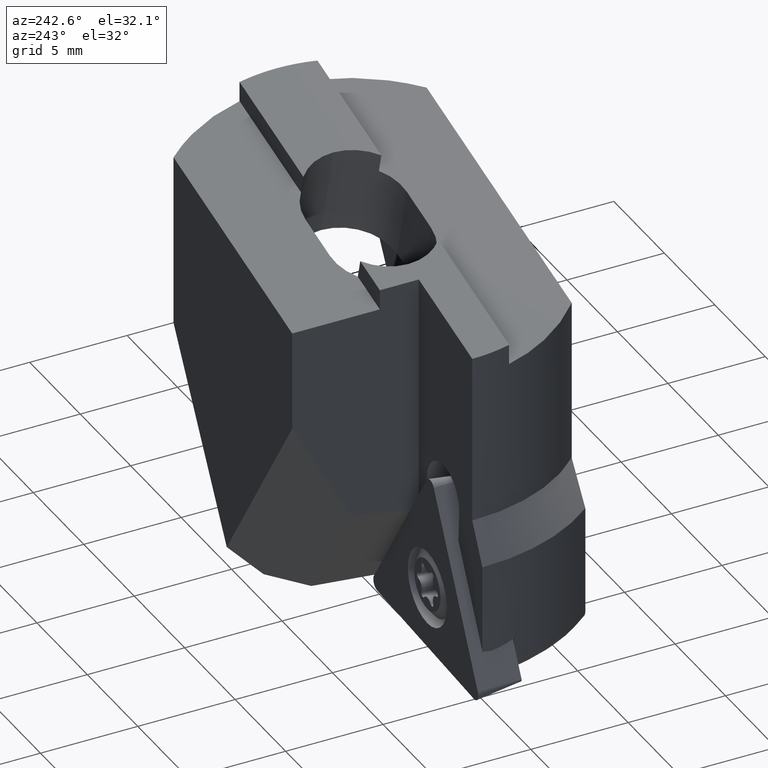
[diagram: clean part render]
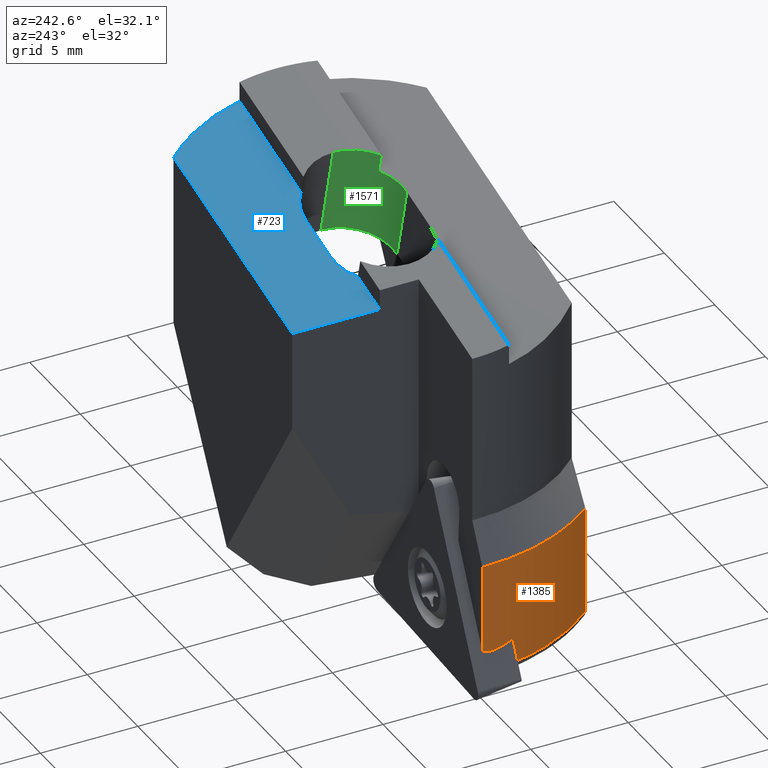
[diagram: same view with three faces highlighted in distinct colors, each labeled with its STEP entity id]
A machine part, auxiliary view with three faces highlighted in distinct colors.
Their STEP definitions:

[orange] entity #1385 — the highlighted cylindrical surface (partial cylindrical patch) has radius 10.2 mm, axis along (0, -0, 1).
#585=VERTEX_POINT('NONE',#1689);
#619=EDGE_CURVE('NONE',#1083,#1401,#1725,.T.);
#699=EDGE_CURVE('NONE',#945,#1293,#1815,.T.);
#807=EDGE_CURVE('NONE',#1383,#1293,#1936,.T.);
#873=EDGE_CURVE('NONE',#1569,#1383,#2008,.T.);
#945=VERTEX_POINT('NONE',#2094);
#1021=EDGE_CURVE('NONE',#1401,#585,#2176,.F.);
#1083=VERTEX_POINT('NONE',#2245);
#1193=EDGE_CURVE('NONE',#1569,#585,#2363,.F.);
#1245=EDGE_CURVE('NONE',#1083,#945,#2424,.T.);
#1293=VERTEX_POINT('NONE',#2476);
#1383=VERTEX_POINT('NONE',#2577);
#1385=ADVANCED_FACE('NONE',(#2579),#2580,.T.);
#1401=VERTEX_POINT('NONE',#2597);
#1569=VERTEX_POINT('NONE',#2775);
#1689=CARTESIAN_POINT('',(-7.86066154976793,-6.5,-21.0628344528579));
#1725=LINE('',#2958,#2959);
#1815=ELLIPSE('',#3083,22.6127887685283,10.2);
#1936=LINE('',#3239,#3240);
#2008=CIRCLE('',#3337,10.2);
#2094=CARTESIAN_POINT('',(-10.1892149538817,-0.468933495916991,-20.1317243506722));
#2176=B_SPLINE_CURVE_WITH_KNOTS('',3,(#3555,#3556,#3557,#3558,#3559,#3560,#3561,#3562,#3563,#3564),.UNSPECIFIED.,.F.,.F.,(4,3,3,4),(0.0,0.567814310972953,0.833359804039819,1.0),.UNSPECIFIED.);
#2245=CARTESIAN_POINT('',(-10.0573356312693,-1.7,-19.8728966066542));
#2363=LINE('',#4203,#4204);
#2424=ELLIPSE('',#4287,22.4674304987693,10.2);
#2476=CARTESIAN_POINT('',(-10.2,-2.22044604925031E-015,-20.0352054220153));
#2577=CARTESIAN_POINT('',(-10.2,-1.24909848089882E-015,-15.5));
#2579=FACE_OUTER_BOUND('',#4496,.T.);
#2580=CYLINDRICAL_SURFACE('',#4497,10.2);
#2597=CARTESIAN_POINT('',(-10.0573356312693,-1.7,-21.1723139882574));
#2775=CARTESIAN_POINT('',(-7.86066154976794,-6.5,-15.5));
#2958=CARTESIAN_POINT('',(-10.0573356312694,-1.7,-25.0));
#2959=VECTOR('',#4950,1.0);
#3083=AXIS2_PLACEMENT_3D('',#5058,#5059,#5060);
#3239=CARTESIAN_POINT('',(-10.2,0.0,-25.0));
#3240=VECTOR('',#5227,1.0);
#3337=AXIS2_PLACEMENT_3D('',#5318,#5319,#5320);
#3555=CARTESIAN_POINT('',(-7.86066154976793,-6.5,-21.0628344528579));
#3556=CARTESIAN_POINT('',(-8.50430514676543,-5.72162085005038,-21.0949030854319));
#3557=CARTESIAN_POINT('',(-9.03215775332117,-4.84566351870311,-21.1212495668353));
#3558=CARTESIAN_POINT('',(-9.41964797551746,-3.91282915769776,-21.1405355891396));
#3559=CARTESIAN_POINT('',(-9.6008626439808,-3.47657745435758,-21.1495549396616));
#3560=CARTESIAN_POINT('',(-9.75182121446842,-3.0274251618058,-21.1570778329274));
#3561=CARTESIAN_POINT('',(-9.87089457942407,-2.57010509549638,-21.1630084849264));
#3562=CARTESIAN_POINT('',(-9.94561777898089,-2.28311884471811,-21.1667302013068));
#3563=CARTESIAN_POINT('',(-10.0079093118368,-1.99241004914773,-21.1698504232316));
#3564=CARTESIAN_POINT('',(-10.0573356312693,-1.70000000000001,-21.1723139882574));
#4203=CARTESIAN_POINT('',(-7.86066154976793,-6.5,-25.0));
#4204=VECTOR('',#5788,1.0);
#4287=AXIS2_PLACEMENT_3D('',#5881,#5882,#5883);
#4496=EDGE_LOOP('',(#6052,#6053,#6054,#6055,#6056,#6057,#6058));
#4497=AXIS2_PLACEMENT_3D('',#6059,#6060,#6061);
#4950=DIRECTION('',(-1.22464679914735E-016,0.0,-1.0));
#5058=CARTESIAN_POINT('',(-2.03025202247144E-018,0.0,-0.0165782658631457));
#5059=DIRECTION('',(0.885279005657779,0.113203213767907,-0.45107218328577));
#5060=DIRECTION('',(0.447428952205352,0.0572140477733558,0.892487470761248));
#5227=DIRECTION('',(-1.22464679914735E-016,0.0,-1.0));
#5318=CARTESIAN_POINT('',(-1.8982025386784E-015,0.0,-15.5));
#5319=DIRECTION('',(-1.22464679914735E-016,0.0,-1.0));
#5320=DIRECTION('',(1.0,0.0,-1.22464679914735E-016));
#5788=DIRECTION('',(1.22464679914735E-016,-0.0,1.0));
#5881=CARTESIAN_POINT('',(-1.64426026011188E-017,0.0,-0.134264039334173));
#5882=DIRECTION('',(0.891006524188364,0.0,-0.453990499739555));
#5883=DIRECTION('',(0.453990499739555,0.0,0.891006524188364));
#6052=ORIENTED_EDGE('',*,*,#619,.T.);
#6053=ORIENTED_EDGE('',*,*,#1021,.T.);
#6054=ORIENTED_EDGE('',*,*,#1193,.F.);
#6055=ORIENTED_EDGE('',*,*,#873,.T.);
#6056=ORIENTED_EDGE('',*,*,#807,.T.);
#6057=ORIENTED_EDGE('',*,*,#699,.F.);
#6058=ORIENTED_EDGE('',*,*,#1245,.F.);
#6059=CARTESIAN_POINT('',(-3.06161699786838E-015,0.0,-25.0));
#6060=DIRECTION('',(1.22464679914735E-016,-0.0,1.0));
#6061=DIRECTION('',(1.0,0.0,-1.22464679914735E-016));

[blue] entity #723 — the highlighted planar face has unit normal (0.2419, 0, -0.9703).
#711=EDGE_CURVE('NONE',#1221,#1009,#1827,.T.);
#723=ADVANCED_FACE('NONE',(#1840),#1841,.F.);
#773=EDGE_CURVE('NONE',#1291,#1045,#1896,.T.);
#851=VERTEX_POINT('NONE',#1984);
#877=EDGE_CURVE('NONE',#1009,#881,#2012,.T.);
#881=VERTEX_POINT('NONE',#2017);
#915=EDGE_CURVE('NONE',#985,#1221,#2055,.T.);
#985=VERTEX_POINT('NONE',#2136);
#1009=VERTEX_POINT('NONE',#2162);
#1045=VERTEX_POINT('NONE',#2203);
#1079=VERTEX_POINT('NONE',#2239);
#1169=EDGE_CURVE('NONE',#1045,#851,#2338,.T.);
#1221=VERTEX_POINT('NONE',#2396);
#1231=EDGE_CURVE('NONE',#985,#851,#2407,.T.);
#1291=VERTEX_POINT('NONE',#2474);
#1621=EDGE_CURVE('NONE',#881,#1079,#2831,.T.);
#1663=EDGE_CURVE('NONE',#1079,#1291,#2875,.F.);
#1827=LINE('',#3101,#3102);
#1840=FACE_OUTER_BOUND('',#3118,.T.);
#1841=PLANE('',#3119);
#1896=LINE('',#3189,#3190);
#1984=CARTESIAN_POINT('',(7.86066154976793,6.5,-1.61387621312051));
#2012=CIRCLE('',#3344,2.6);
#2017=CARTESIAN_POINT('',(-0.105192649020442,2.6,-3.59998673144431));
#2055=LINE('',#3401,#3402);
#2136=CARTESIAN_POINT('',(-3.9,6.5,-4.54613846943863));
#2162=CARTESIAN_POINT('',(-1.71716897581477,2.0,-4.00189756963441));
#2203=CARTESIAN_POINT('',(10.00199980004,2.0,-1.07998062376848));
#2239=CARTESIAN_POINT('',(2.30114075214403,2.6,-3.00002043035715));
#2338=ELLIPSE('',#4168,10.5122590193689,10.2);
#2396=CARTESIAN_POINT('',(-3.9,2.0,-4.54613846943863));
#2407=LINE('',#4258,#4259);
#2474=CARTESIAN_POINT('',(3.91311707893836,2.0,-2.59810959216705));
#2831=LINE('',#4855,#4856);
#2875=CIRCLE('',#4914,2.6);
#3101=CARTESIAN_POINT('',(-12.0442740925542,2.0,-6.57673406354256));
#3102=VECTOR('',#5066,1.0);
#3118=EDGE_LOOP('',(#5083,#5084,#5085,#5086,#5087,#5088,#5089,#5090));
#3119=AXIS2_PLACEMENT_3D('',#5091,#5092,#5093);
#3189=CARTESIAN_POINT('',(-12.0442740925542,2.0,-6.57673406354256));
#3190=VECTOR('',#5155,1.0);
#3344=AXIS2_PLACEMENT_3D('',#5322,#5323,#5324);
#3401=CARTESIAN_POINT('',(-3.9,12.8570747038417,-4.54613846943863));
#3402=VECTOR('',#5402,1.0);
#4168=AXIS2_PLACEMENT_3D('',#5758,#5759,#5760);
#4258=CARTESIAN_POINT('',(-13.2973272409178,6.5,-6.88915530248042));
#4259=VECTOR('',#5854,1.0);
#4855=CARTESIAN_POINT('',(-6.0747333707873,2.6,-5.08836039749344));
#4856=VECTOR('',#6322,1.0);
#4914=AXIS2_PLACEMENT_3D('',#6358,#6359,#6360);
#5066=DIRECTION('',(0.970295726275998,0.0,0.241921895599661));
#5083=ORIENTED_EDGE('',*,*,#1621,.T.);
#5084=ORIENTED_EDGE('',*,*,#1663,.T.);
#5085=ORIENTED_EDGE('',*,*,#773,.T.);
#5086=ORIENTED_EDGE('',*,*,#1169,.T.);
#5087=ORIENTED_EDGE('',*,*,#1231,.F.);
#5088=ORIENTED_EDGE('',*,*,#915,.T.);
#5089=ORIENTED_EDGE('',*,*,#711,.T.);
#5090=ORIENTED_EDGE('',*,*,#877,.T.);
#5091=CARTESIAN_POINT('',(-12.0442740925542,10.7141494076833,-6.57673406354256));
#5092=DIRECTION('',(0.241921895599661,0.0,-0.970295726275998));
#5093=DIRECTION('',(0.0,-1.0,0.0));
#5155=DIRECTION('',(0.970295726275998,0.0,0.241921895599661));
#5322=CARTESIAN_POINT('',(-0.105192649020442,9.25344905792385E-017,-3.59998673144431));
#5323=DIRECTION('',(0.241921895599661,0.0,-0.970295726275998));
#5324=DIRECTION('',(0.970295726275998,0.0,0.241921895599661));
#5402=DIRECTION('',(0.0,-1.0,-0.0));
#5758=CARTESIAN_POINT('',(-4.37659283666187E-016,0.0,-3.57375925835026));
#5759=DIRECTION('',(-0.241921895599661,0.0,0.970295726275998));
#5760=DIRECTION('',(0.970295726275998,0.0,0.241921895599661));
#5854=DIRECTION('',(0.970295726275998,0.0,0.241921895599661));
#6322=DIRECTION('',(0.970295726275998,1.02345543642743E-017,0.241921895599661));
#6358=CARTESIAN_POINT('',(2.30114075214403,5.2621535957344E-016,-3.00002043035715));
#6359=DIRECTION('',(-0.241921895599661,0.0,0.970295726275998));
#6360=DIRECTION('',(0.970295726275998,0.0,0.241921895599661));

[green] entity #1571 — the highlighted cylindrical surface (partial cylindrical patch) has radius 2.6 mm, axis along (-0.2419, -0, 0.9703).
#603=EDGE_CURVE('NONE',#1661,#1097,#1709,.T.);
#649=VERTEX_POINT('NONE',#1758);
#667=EDGE_CURVE('NONE',#811,#1605,#1777,.F.);
#811=VERTEX_POINT('NONE',#1940);
#1019=VERTEX_POINT('NONE',#2174);
#1025=EDGE_CURVE('NONE',#1605,#1019,#2181,.T.);
#1097=VERTEX_POINT('NONE',#2259);
#1109=EDGE_CURVE('NONE',#649,#1019,#2272,.T.);
#1185=EDGE_CURVE('NONE',#649,#1097,#2354,.F.);
#1507=EDGE_CURVE('NONE',#1661,#811,#2708,.T.);
#1571=ADVANCED_FACE('NONE',(#2777),#2778,.F.);
#1605=VERTEX_POINT('NONE',#2814);
#1661=VERTEX_POINT('NONE',#2873);
#1709=LINE('',#2921,#2922);
#1758=CARTESIAN_POINT('',(3.6711951833387,-2.0,-1.62781386589105));
#1777=LINE('',#3033,#3034);
#1940=CARTESIAN_POINT('',(3.26882833454268,-2.6,-6.88120333546115));
#2174=CARTESIAN_POINT('',(3.91311707893836,-2.0,-2.59810959216705));
#2181=CIRCLE('',#3570,2.6);
#2259=CARTESIAN_POINT('',(4.58198774486197,5.2621535957344E-016,-1.40072777552204));
#2272=LINE('',#4073,#4074);
#2354=CIRCLE('',#4192,2.6);
#2708=CIRCLE('',#4675,2.6);
#2777=FACE_OUTER_BOUND('',#4784,.T.);
#2778=CYLINDRICAL_SURFACE('',#4785,2.6);
#2814=CARTESIAN_POINT('',(2.30114075214404,-2.6,-3.00002043035716));
#2873=CARTESIAN_POINT('',(5.79159722286027,5.2621535957344E-016,-6.25220640690203));
#2921=CARTESIAN_POINT('',(9.675481331278,5.2621535957344E-016,-21.8296147370072));
#2922=VECTOR('',#4942,1000.0);
#3033=CARTESIAN_POINT('',(7.15271244296041,-2.6,-22.4586116655663));
#3034=VECTOR('',#5001,1.0);
#3570=AXIS2_PLACEMENT_3D('',#5585,#5586,#5587);
#4073=CARTESIAN_POINT('',(8.76468876975474,-2.0,-22.0567008273762));
#4074=VECTOR('',#5677,1.0);
#4192=AXIS2_PLACEMENT_3D('',#5772,#5773,#5774);
#4675=AXIS2_PLACEMENT_3D('',#6196,#6197,#6198);
#4784=EDGE_LOOP('',(#6276,#6277,#6278,#6279,#6280,#6281));
#4785=AXIS2_PLACEMENT_3D('',#6282,#6283,#6284);
#4942=DIRECTION('',(-0.241921895599661,0.0,0.970295726275998));
#5001=DIRECTION('',(0.241921895599661,0.0,-0.970295726275998));
#5585=CARTESIAN_POINT('',(2.30114075214403,5.2621535957344E-016,-3.00002043035715));
#5586=DIRECTION('',(-0.241921895599661,0.0,0.970295726275998));
#5587=DIRECTION('',(0.970295726275998,0.0,0.241921895599661));
#5677=DIRECTION('',(0.241921895599661,0.0,-0.970295726275998));
#5772=CARTESIAN_POINT('',(2.05921885654437,5.2621535957344E-016,-2.02972470408115));
#5773=DIRECTION('',(0.241921895599661,0.0,-0.970295726275998));
#5774=DIRECTION('',(0.970295726275998,0.0,0.241921895599661));
#6196=CARTESIAN_POINT('',(3.26882833454268,5.2621535957344E-016,-6.88120333546115));
#6197=DIRECTION('',(0.241921895599661,0.0,-0.970295726275998));
#6198=DIRECTION('',(0.970295726275998,0.0,0.241921895599661));
#6276=ORIENTED_EDGE('',*,*,#603,.F.);
#6277=ORIENTED_EDGE('',*,*,#1507,.T.);
#6278=ORIENTED_EDGE('',*,*,#667,.T.);
#6279=ORIENTED_EDGE('',*,*,#1025,.T.);
#6280=ORIENTED_EDGE('',*,*,#1109,.F.);
#6281=ORIENTED_EDGE('',*,*,#1185,.T.);
#6282=CARTESIAN_POINT('',(7.15271244296041,5.2621535957344E-016,-22.4586116655663));
#6283=DIRECTION('',(-0.241921895599661,-0.0,0.970295726275998));
#6284=DIRECTION('',(0.970295726275998,0.0,0.241921895599661));